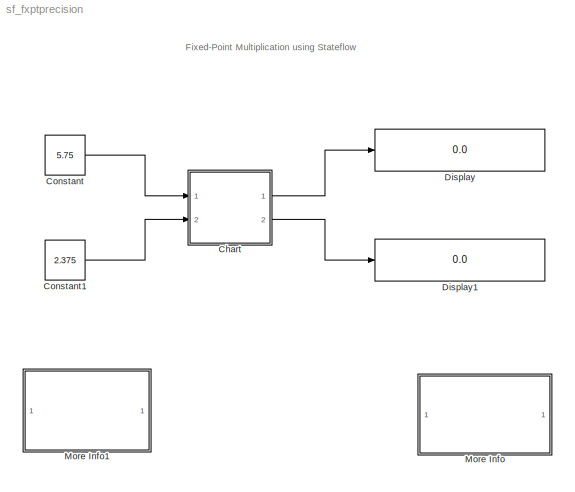
MODEL sf_fxptprecision
KIND model
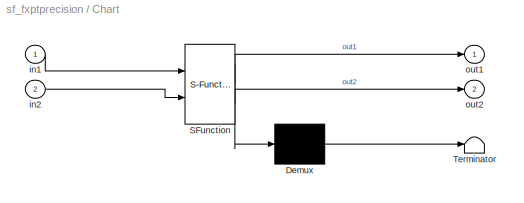
BLOCK [SubSystem] Chart
  MaskDescription = Stateflow diagram
  MaskDisplay = plot(sf('Private','sfblk','xIcon'),sf('Private','sfblk','yIcon'));text(0.5,0,sf('Private', 'sfblk', 'tIcon'),'HorizontalAl','Center','VerticalAl','Bottom');
  MaskIconFrame = off
  MaskIconOpaque = off
  MaskIconRotate = none
  MaskIconUnits = autoscale
  MaskSelfModifiable = on
  MaskType = Stateflow
  MinAlgLoopOccurrences = off
  Ports = [2, 2]
  PropExecContextAcrossSSBoundary = on
  RTWSystemCode = Auto
  TreatAsAtomicUnit = off
BLOCK [Demux] Chart/ Demux 
  Outputs = 1
  Ports = [1, 1]
BLOCK [S-Function] Chart/ SFunction 
  FunctionName = sf_sfun
  PortCounts = [2 3]
  Ports = [2, 3]
  Tag = Stateflow S-Function sf_fxptprecision 1
BLOCK [Terminator] Chart/ Terminator 
BLOCK [Inport] Chart/in1
  IconDisplay = Port number
  LatchInput = off
  Port = 1
BLOCK [Inport] Chart/in2
  IconDisplay = Port number
  LatchInput = off
  Port = 2
BLOCK [Outport] Chart/out1
  IconDisplay = Port number
BLOCK [Outport] Chart/out2
  IconDisplay = Port number
  Port = 2
BLOCK [Constant] Constant
  OutDataType = ufix(8)
  OutDataTypeMode = Specify via dialog
  OutScaling = 2^-2
  Value = 5.75
BLOCK [Constant] Constant1
  OutDataType = ufix(8)
  OutDataTypeMode = Specify via dialog
  OutScaling = 2^-3
  Value = 2.375
BLOCK [Display] Display
  Decimation = 1
  Format = long
  Ports = [1]
BLOCK [Display] Display1
  Decimation = 1
  Format = long
  Ports = [1]
BLOCK [SubSystem] More Info
  MaskDisplay = disp('Double click\\nhere for\\ninformation on\\nthis demonstration')
  MaskIconFrame = on
  MaskIconOpaque = on
  MaskIconRotate = none
  MaskIconUnits = autoscale
  MinAlgLoopOccurrences = off
  Ports = []
  PropExecContextAcrossSSBoundary = on
  RTWSystemCode = Auto
  TreatAsAtomicUnit = off
BLOCK [SubSystem] More Info1
  MaskDisplay = disp('Double click\\nhere for<path> Help')
  MaskIconFrame = on
  MaskIconOpaque = on
  MaskIconRotate = none
  MaskIconUnits = autoscale
  MinAlgLoopOccurrences = off
  OpenFcn = simcad(bdroot);
  Ports = []
  PropExecContextAcrossSSBoundary = on
  RTWSystemCode = Auto
  TreatAsAtomicUnit = off
ANNOTATION (root): Fixed-Point Multiplication using Stateflow
ANNOTATION More Info: Fixed-Point Multiplication
ANNOTATION More Info: This demonstration illustrates how Fixed-Point mathematics can be used within \nyour Stateflow chart. The chart takes two fixed-point inputs from Simulink: 'in1' is an\nunsigned 8 bit integer with a slope bias of 2^-2 and 'in2' is an unsigned 8 bit integer\nwith a slope bias of 2^-3. The chart provides two outputs: 'out1' which is an unsigned \n8 bit integer with a slope bias of 2^-2 and 'out2' wh...<+700ch>
LINE Chart/ Demux :1 -> Chart/ Terminator :1
LINE Chart/ SFunction :1 -> Chart/ Demux :1
LINE Chart/ SFunction :2 -> Chart/out1:1
LINE Chart/ SFunction :3 -> Chart/out2:1
LINE Chart/in1:1 -> Chart/ SFunction :1
LINE Chart/in2:1 -> Chart/ SFunction :2
LINE Chart:1 -> Display:1
LINE Chart:2 -> Display1:1
LINE Constant1:1 -> Chart:2
LINE Constant:1 -> Chart:1
CHART Chart states=0 transitions=2
note: 1 file-system path scrubbed to <path> (not preserved elsewhere — flat text is the only slx artifact)
